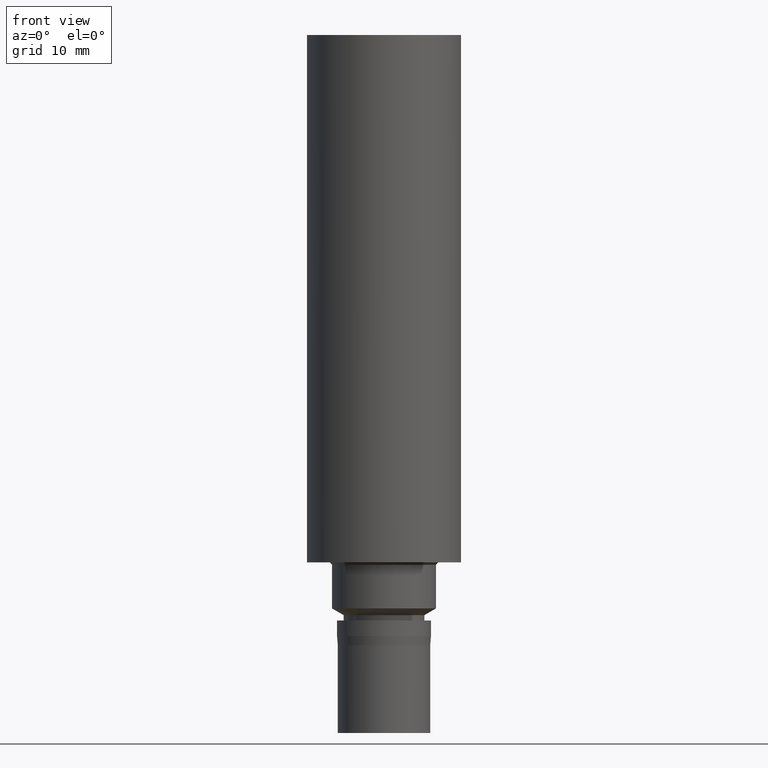
[diagram: clean part render]
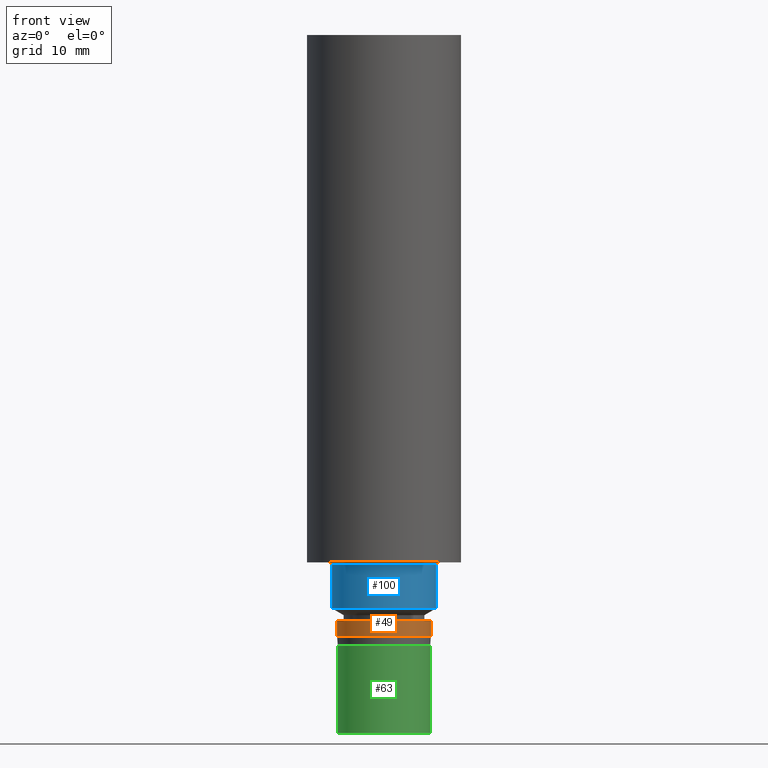
[diagram: same view with three faces highlighted in distinct colors, each labeled with its STEP entity id]
A machine part, front view with three faces highlighted in distinct colors.
Their STEP definitions:

[orange] entity #49 — the highlighted cylindrical surface (bore or boss wall) has radius 6.1 mm, axis along (0, 0, -1).
#49=ADVANCED_FACE('Unnamed[1]',(#126,#127),#128,.T.);
#91=EDGE_CURVE('Unnamed[1]',#190,#190,#191,.T.);
#102=EDGE_CURVE('Unnamed[1]',#208,#208,#209,.T.);
#126=FACE_BOUND('',#227,.T.);
#127=FACE_BOUND('',#228,.T.);
#128=CYLINDRICAL_SURFACE('',#229,6.10000000000002);
#190=VERTEX_POINT('',#307);
#191=CIRCLE('',#308,6.10000000000002);
#208=VERTEX_POINT('',#329);
#209=CIRCLE('',#330,6.10000000000002);
#227=EDGE_LOOP('',(#343));
#228=EDGE_LOOP('',(#344));
#229=AXIS2_PLACEMENT_3D('',#345,#346,#347);
#307=CARTESIAN_POINT('',(-8.87868929381823E-016,6.10000000000002,14.4999999999999));
#308=AXIS2_PLACEMENT_3D('',#413,#414,#415);
#329=CARTESIAN_POINT('',(-7.6540424946707E-016,6.10000000000002,12.4999999999996));
#330=AXIS2_PLACEMENT_3D('',#434,#435,#436);
#343=ORIENTED_EDGE('',*,*,#102,.F.);
#344=ORIENTED_EDGE('',*,*,#91,.T.);
#345=CARTESIAN_POINT('',(-8.26636589424446E-016,-1.65327317884889E-015,13.4999999999997));
#346=DIRECTION('',(6.12323399573677E-017,1.22464679914735E-016,-1.0));
#347=DIRECTION('',(-1.23259516440783E-032,1.0,1.22464679914735E-016));
#413=CARTESIAN_POINT('',(-8.87868929381823E-016,-1.77573785876365E-015,14.4999999999999));
#414=DIRECTION('',(6.12323399573677E-017,1.22464679914735E-016,-1.0));
#415=DIRECTION('',(-1.23259516440783E-032,1.0,1.22464679914735E-016));
#434=CARTESIAN_POINT('',(-7.6540424946707E-016,-1.53080849893414E-015,12.4999999999996));
#435=DIRECTION('',(6.12323399573677E-017,1.22464679914735E-016,-1.0));
#436=DIRECTION('',(-1.23259516440783E-032,1.0,1.22464679914735E-016));

[blue] entity #100 — the highlighted cylindrical surface (bore or boss wall) has radius 6.75 mm, axis along (0, 0, -1).
#65=EDGE_CURVE('Unnamed[1]',#152,#152,#153,.T.);
#89=EDGE_CURVE('Unnamed[1]',#187,#187,#188,.T.);
#100=ADVANCED_FACE('Unnamed[1]',(#204,#205),#206,.T.);
#152=VERTEX_POINT('',#259);
#153=CIRCLE('',#260,6.74999999999997);
#187=VERTEX_POINT('',#303);
#188=CIRCLE('',#304,6.74999999999997);
#204=FACE_BOUND('',#324,.T.);
#205=FACE_BOUND('',#325,.T.);
#206=CYLINDRICAL_SURFACE('',#326,6.74999999999997);
#259=CARTESIAN_POINT('',(-9.83760329288216E-016,6.74999999999997,16.0660254037842));
#260=AXIS2_PLACEMENT_3D('',#374,#375,#376);
#303=CARTESIAN_POINT('',(-1.32874177707476E-015,6.74999999999997,21.6999999999981));
#304=AXIS2_PLACEMENT_3D('',#410,#411,#412);
#324=EDGE_LOOP('',(#429));
#325=EDGE_LOOP('',(#430));
#326=AXIS2_PLACEMENT_3D('',#431,#432,#433);
#374=CARTESIAN_POINT('',(-9.83760329288216E-016,-1.96752065857643E-015,16.0660254037842));
#375=DIRECTION('',(6.12323399573677E-017,1.22464679914735E-016,-1.0));
#376=DIRECTION('',(-1.23259516440783E-032,1.0,1.22464679914735E-016));
#410=CARTESIAN_POINT('',(-1.32874177707476E-015,-2.65748355414952E-015,21.6999999999981));
#411=DIRECTION('',(6.12323399573677E-017,1.22464679914735E-016,-1.0));
#412=DIRECTION('',(-1.23259516440783E-032,1.0,1.22464679914735E-016));
#429=ORIENTED_EDGE('',*,*,#65,.F.);
#430=ORIENTED_EDGE('',*,*,#89,.T.);
#431=CARTESIAN_POINT('',(-1.15625105318149E-015,-2.31250210636298E-015,18.8830127018911));
#432=DIRECTION('',(6.12323399573677E-017,1.22464679914735E-016,-1.0));
#433=DIRECTION('',(-1.23259516440783E-032,1.0,1.22464679914735E-016));

[green] entity #63 — the highlighted cylindrical surface (bore or boss wall) has radius 6 mm, axis along (0, 0, -1).
#63=ADVANCED_FACE('Unnamed[1]',(#148,#149),#150,.T.);
#85=EDGE_CURVE('Unnamed[1]',#181,#181,#182,.T.);
#104=EDGE_CURVE('Unnamed[1]',#211,#211,#212,.T.);
#148=FACE_BOUND('',#254,.T.);
#149=FACE_BOUND('',#255,.T.);
#150=CYLINDRICAL_SURFACE('',#256,5.99999999999989);
#181=VERTEX_POINT('',#295);
#182=CIRCLE('',#296,5.99999999999989);
#211=VERTEX_POINT('',#333);
#212=CIRCLE('',#334,5.99999999999989);
#254=EDGE_LOOP('',(#369));
#255=EDGE_LOOP('',(#370));
#256=AXIS2_PLACEMENT_3D('',#371,#372,#373);
#295=CARTESIAN_POINT('',(0.0,5.99999999999989,0.0));
#296=AXIS2_PLACEMENT_3D('',#404,#405,#406);
#333=CARTESIAN_POINT('',(-6.91925441517873E-016,5.99999999999989,11.2999999999938));
#334=AXIS2_PLACEMENT_3D('',#437,#438,#439);
#369=ORIENTED_EDGE('',*,*,#85,.F.);
#370=ORIENTED_EDGE('',*,*,#104,.T.);
#371=CARTESIAN_POINT('',(-3.45962720758937E-016,-6.91925441517874E-016,5.64999999999689));
#372=DIRECTION('',(6.12323399573677E-017,1.22464679914735E-016,-1.0));
#373=DIRECTION('',(-1.23259516440783E-032,1.0,1.22464679914735E-016));
#404=CARTESIAN_POINT('',(0.0,0.0,0.0));
#405=DIRECTION('',(6.12323399573677E-017,1.22464679914735E-016,-1.0));
#406=DIRECTION('',(-1.23259516440783E-032,1.0,1.22464679914735E-016));
#437=CARTESIAN_POINT('',(-6.91925441517873E-016,-1.38385088303575E-015,11.2999999999938));
#438=DIRECTION('',(6.12323399573677E-017,1.22464679914735E-016,-1.0));
#439=DIRECTION('',(-1.23259516440783E-032,1.0,1.22464679914735E-016));